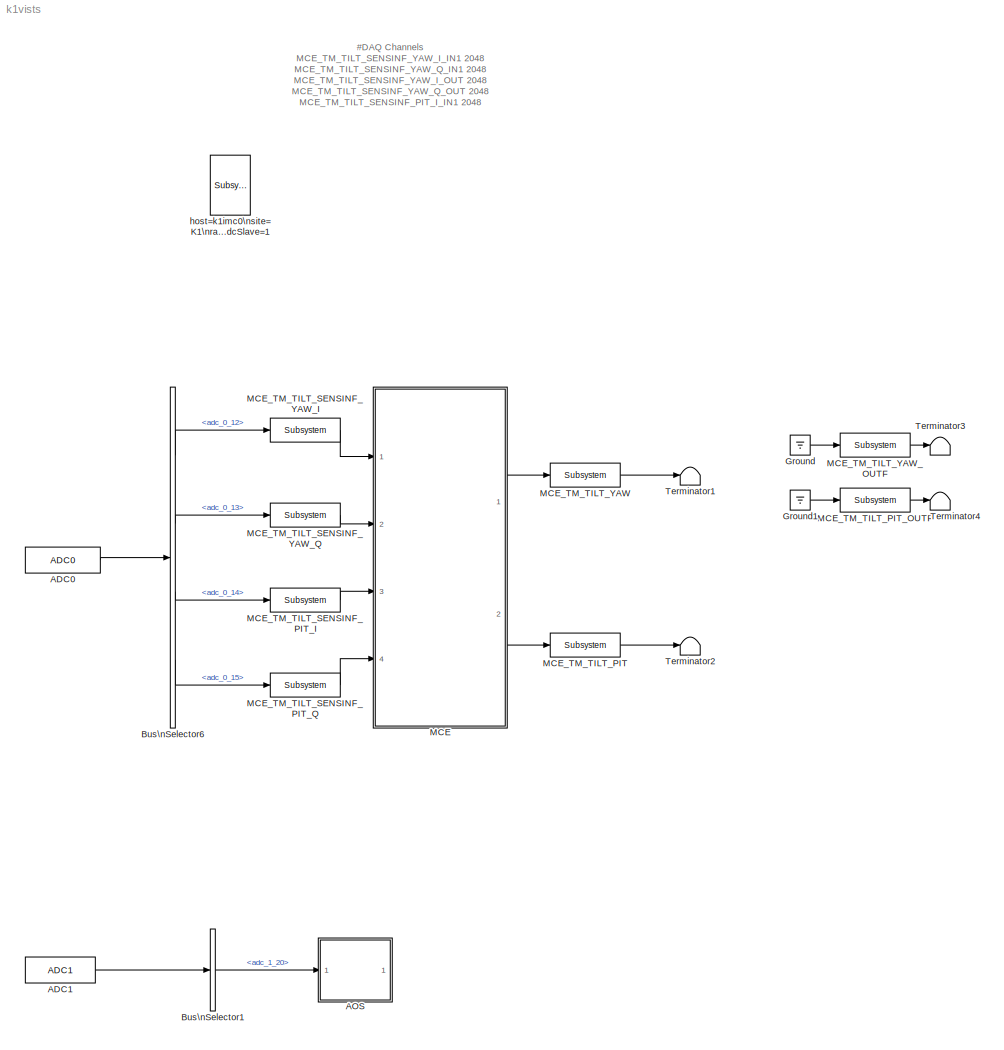
MODEL k1vists
KIND model
BLOCK [Reference] ADC0  REF=cdsAdcx0/ADC0
  AttributesFormatString = %<Description>\\n%<Tag>
  Description = type-GSC_16AI64SSA\ncard_num=0
  Ports = [0, 1]
  SID = 1211
  SourceBlock = cdsAdcx0/ADC0
  SourceType = SubSystem
  Tag = cdsAdc
BLOCK [Reference] ADC1  REF=cdsAdcx1/ADC1
  AttributesFormatString = %<Description>\\n%<Tag>
  Description = type-GSC_16AI64SSA\ncard_num=1
  Ports = [0, 1]
  SID = 2100
  SourceBlock = cdsAdcx1/ADC1
  SourceType = SubSystem
  Tag = cdsAdc
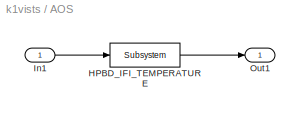
BLOCK [SubSystem] AOS
  Ports = [1, 1]
  RequestExecContextInheritance = off
  SID = 2102
  Tag = top_names
  Variant = off
BLOCK [Reference] AOS/HPBD_IFI_TEMPERATURE  REF=cdsFilt/Subsystem
  AttributesFormatString = %<Tag>
  Description = ADL=LOCKIN_FILTER.adl
  Ports = [1, 1]
  SID = 2101
  SourceBlock = cdsFilt/Subsystem
  SourceType = SubSystem
  Tag = cdsFilt
BLOCK [Inport] AOS/In1
  IconDisplay = Port number
  SID = 2103
BLOCK [Outport] AOS/Out1
  IconDisplay = Port number
  SID = 2104
BLOCK [BusSelector] Bus\nSelector1
  AttributesFormatString = %<Description>
  Description = ADC Selector
  OutputSignals = adc_1_20
  Ports = [1, 1]
  SID = 2105
BLOCK [BusSelector] Bus\nSelector6
  AttributesFormatString = %<Description>
  Description = ADC Selector
  OutputSignals = adc_0_12,adc_0_13,adc_0_14,adc_0_15
  Ports = [1, 4]
  SID = 1853
BLOCK [Ground] Ground
  SID = 2098
BLOCK [Ground] Ground1
  SID = 2099
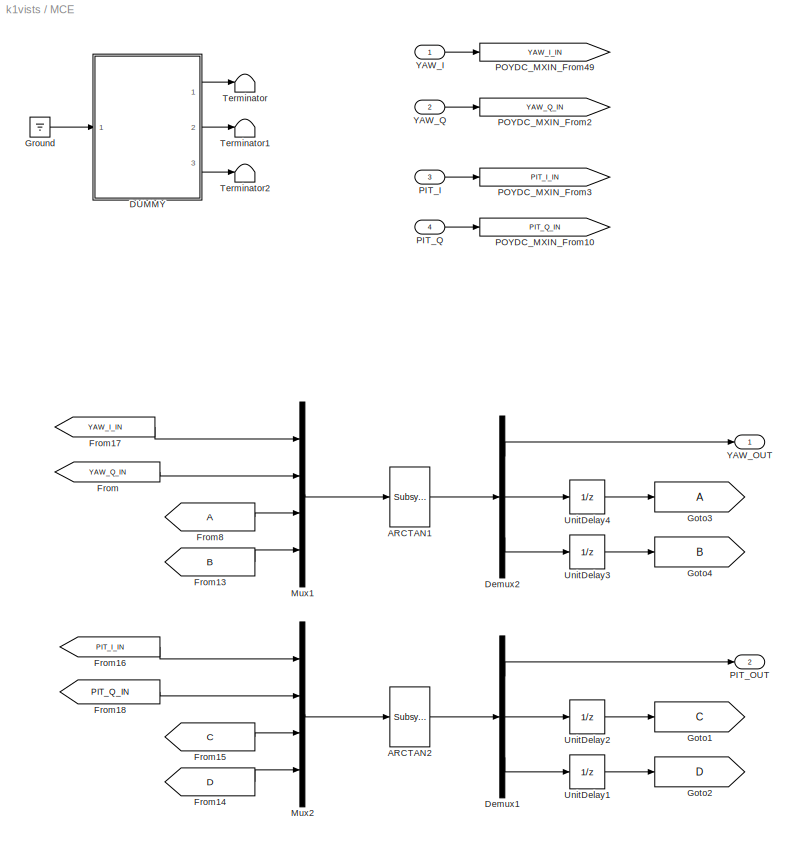
BLOCK [SubSystem] MCE
  Ports = [4, 2]
  RequestExecContextInheritance = off
  SID = 1860
  Variant = off
BLOCK [Reference] MCE/ARCTAN1  REF=cdsFunctionCall/Subsystem
  AttributesFormatString = %<Tag>\\n%<Description>
  Description = inline ARCTAN <path>
  Ports = [1, 1]
  SID = 1865
  SourceBlock = cdsFunctionCall/Subsystem
  SourceType = SubSystem
  Tag = cdsFunctionCall
BLOCK [Reference] MCE/ARCTAN2  REF=cdsFunctionCall/Subsystem
  AttributesFormatString = %<Tag>\\n%<Description>
  Description = inline ARCTAN <path>
  Ports = [1, 1]
  SID = 1866
  SourceBlock = cdsFunctionCall/Subsystem
  SourceType = SubSystem
  Tag = cdsFunctionCall
BLOCK [SubSystem] MCE/DUMMY
  AttributesFormatString = %<Tag>
  Description = ADL=LOCKIN.adl
  Ports = [1, 3]
  RequestExecContextInheritance = off
  SID = 2058
  Variant = off
BLOCK [Reference] MCE/DUMMY/DEMOD  REF=rtdemod/RTDEMOD
  Ports = [3, 2]
  SID = 2063
  SourceBlock = rtdemod/RTDEMOD
  SourceType = SubSystem
BLOCK [Ground] MCE/DUMMY/Ground2
  SID = 2064
BLOCK [Outport] MCE/DUMMY/I out
  IconDisplay = Port number
  Port = 2
  SID = 2069
BLOCK [Reference] MCE/DUMMY/LO  REF=cdsTP/Subsystem
  AttributesFormatString = %<Tag>
  Ports = [1]
  SID = 2065
  SourceBlock = cdsTP/Subsystem
  SourceType = SubSystem
  Tag = Test Point
BLOCK [Outport] MCE/DUMMY/LO out
  IconDisplay = Port number
  SID = 2068
BLOCK [Reference] MCE/DUMMY/LOMON  REF=cdsEpicsOut/Subsystem
  AttributesFormatString = %<Tag>
  Description = Purpose:                                          \nOutput a FE signal to an EPICS channel.           \n                                                  \nOperation:                                        \nTakes input value and passes it to EPICS record.  \n                                                  \nUsage:                                            \nName the part with the desired EPICS...<+14ch>
  Ports = [1, 1]
  SID = 2066
  SourceBlock = cdsEpicsOut/Subsystem
  SourceType = SubSystem
  Tag = cdsEpicsOutput
BLOCK [Reference] MCE/DUMMY/OSC  REF=cdsOsc/Subsystem
  AttributesFormatString = %<Tag>
  Description = Oscillator
  Ports = [1, 3]
  SID = 2067
  SourceBlock = cdsOsc/Subsystem
  SourceType = SubSystem
  Tag = cdsOsc
BLOCK [Outport] MCE/DUMMY/Q out
  IconDisplay = Port number
  Port = 3
  SID = 2070
BLOCK [Inport] MCE/DUMMY/SIG in
  IconDisplay = Port number
  SID = 2062
BLOCK [Demux] MCE/Demux1
  DisplayOption = bar
  Outputs = 3
  Ports = [1, 3]
  SID = 1870
BLOCK [Demux] MCE/Demux2
  DisplayOption = bar
  Outputs = 3
  Ports = [1, 3]
  SID = 1871
BLOCK [From] MCE/From
  GotoTag = YAW_Q_IN
  SID = 1872
BLOCK [From] MCE/From13
  GotoTag = B
  SID = 1877
BLOCK [From] MCE/From14
  GotoTag = D
  SID = 1878
BLOCK [From] MCE/From15
  GotoTag = C
  SID = 1879
BLOCK [From] MCE/From16
  GotoTag = PIT_I_IN
  SID = 1880
BLOCK [From] MCE/From17
  GotoTag = YAW_I_IN
  SID = 1881
BLOCK [From] MCE/From18
  GotoTag = PIT_Q_IN
  SID = 1882
BLOCK [From] MCE/From8
  SID = 1889
BLOCK [Goto] MCE/Goto1
  GotoTag = C
  SID = 1891
BLOCK [Goto] MCE/Goto2
  GotoTag = D
  SID = 1892
BLOCK [Goto] MCE/Goto3
  SID = 1893
BLOCK [Goto] MCE/Goto4
  GotoTag = B
  SID = 1894
BLOCK [Ground] MCE/Ground
  SID = 2091
BLOCK [Mux] MCE/Mux1
  DisplayOption = bar
  Ports = [4, 1]
  SID = 1939
BLOCK [Mux] MCE/Mux2
  DisplayOption = bar
  Ports = [4, 1]
  SID = 1940
BLOCK [Inport] MCE/PIT_I
  IconDisplay = Port number
  Port = 3
  SID = 1863
BLOCK [Outport] MCE/PIT_OUT
  IconDisplay = Port number
  Port = 2
  SID = 2020
BLOCK [Inport] MCE/PIT_Q
  IconDisplay = Port number
  Port = 4
  SID = 1864
BLOCK [Goto] MCE/POYDC_MXIN_From10
  GotoTag = PIT_Q_IN
  SID = 1942
BLOCK [Goto] MCE/POYDC_MXIN_From2
  GotoTag = YAW_Q_IN
  SID = 1943
BLOCK [Goto] MCE/POYDC_MXIN_From3
  GotoTag = PIT_I_IN
  SID = 1944
BLOCK [Goto] MCE/POYDC_MXIN_From49
  GotoTag = YAW_I_IN
  SID = 1946
BLOCK [Terminator] MCE/Terminator
  SID = 2088
BLOCK [Terminator] MCE/Terminator1
  SID = 2089
BLOCK [Terminator] MCE/Terminator2
  SID = 2090
BLOCK [UnitDelay] MCE/UnitDelay1
  SID = 2015
BLOCK [UnitDelay] MCE/UnitDelay2
  SID = 2016
BLOCK [UnitDelay] MCE/UnitDelay3
  SID = 2017
BLOCK [UnitDelay] MCE/UnitDelay4
  SID = 2018
BLOCK [Inport] MCE/YAW_I
  IconDisplay = Port number
  SID = 1861
BLOCK [Outport] MCE/YAW_OUT
  IconDisplay = Port number
  SID = 2019
BLOCK [Inport] MCE/YAW_Q
  IconDisplay = Port number
  Port = 2
  SID = 1862
BLOCK [Reference] MCE_TM_TILT_PIT  REF=cdsFilt/Subsystem
  AttributesFormatString = %<Tag>
  Description = ADL=LOCKIN_FILTER.adl
  Ports = [1, 1]
  SID = 2078
  SourceBlock = cdsFilt/Subsystem
  SourceType = SubSystem
  Tag = cdsFilt
BLOCK [Reference] MCE_TM_TILT_PIT_OUTF  REF=cdsFilt/Subsystem
  AttributesFormatString = %<Tag>
  Description = ADL=LOCKIN_FILTER.adl
  Ports = [1, 1]
  SID = 2095
  SourceBlock = cdsFilt/Subsystem
  SourceType = SubSystem
  Tag = cdsFilt
BLOCK [Reference] MCE_TM_TILT_SENSINF_PIT_I  REF=cdsFilt/Subsystem
  AttributesFormatString = %<Tag>
  Description = ADL=LOCKIN_FILTER.adl
  Ports = [1, 1]
  SID = 2075
  SourceBlock = cdsFilt/Subsystem
  SourceType = SubSystem
  Tag = cdsFilt
BLOCK [Reference] MCE_TM_TILT_SENSINF_PIT_Q  REF=cdsFilt/Subsystem
  AttributesFormatString = %<Tag>
  Description = ADL=LOCKIN_FILTER.adl
  Ports = [1, 1]
  SID = 2076
  SourceBlock = cdsFilt/Subsystem
  SourceType = SubSystem
  Tag = cdsFilt
BLOCK [Reference] MCE_TM_TILT_SENSINF_YAW_I  REF=cdsFilt/Subsystem
  AttributesFormatString = %<Tag>
  Description = ADL=LOCKIN_FILTER.adl
  Ports = [1, 1]
  SID = 2073
  SourceBlock = cdsFilt/Subsystem
  SourceType = SubSystem
  Tag = cdsFilt
BLOCK [Reference] MCE_TM_TILT_SENSINF_YAW_Q  REF=cdsFilt/Subsystem
  AttributesFormatString = %<Tag>
  Description = ADL=LOCKIN_FILTER.adl
  Ports = [1, 1]
  SID = 2074
  SourceBlock = cdsFilt/Subsystem
  SourceType = SubSystem
  Tag = cdsFilt
BLOCK [Reference] MCE_TM_TILT_YAW  REF=cdsFilt/Subsystem
  AttributesFormatString = %<Tag>
  Description = ADL=LOCKIN_FILTER.adl
  Ports = [1, 1]
  SID = 2077
  SourceBlock = cdsFilt/Subsystem
  SourceType = SubSystem
  Tag = cdsFilt
BLOCK [Reference] MCE_TM_TILT_YAW_OUTF  REF=cdsFilt/Subsystem
  AttributesFormatString = %<Tag>
  Description = ADL=LOCKIN_FILTER.adl
  Ports = [1, 1]
  SID = 2094
  SourceBlock = cdsFilt/Subsystem
  SourceType = SubSystem
  Tag = cdsFilt
BLOCK [Terminator] Terminator1
  SID = 1854
BLOCK [Terminator] Terminator2
  SID = 1855
BLOCK [Terminator] Terminator3
  SID = 2096
BLOCK [Terminator] Terminator4
  SID = 2097
BLOCK [Reference] host=k1imc0\nsite=K1\nrate=16K\ndcuid=41\nspecific_cpu=5\nadcSlave=1  REF=cdsParameters/Subsystem
  AttributesFormatString = %<Tag>
  Description = Purpose:                                                                                                                                                                                                                                \nProvide system parameters to the FE code generator to properly configure the generated EPICS names, rep rate of the FE controller, and the Data Acquisition node ID fo...<+2934ch>
  Ports = []
  SID = 15
  SourceBlock = cdsParameters/Subsystem
  SourceType = SubSystem
  Tag = cdsParameters
ANNOTATION (root): #DAQ Channels\nMCE_TM_TILT_SENSINF_YAW_I_IN1 2048\nMCE_TM_TILT_SENSINF_YAW_Q_IN1 2048\nMCE_TM_TILT_SENSINF_YAW_I_OUT 2048\nMCE_TM_TILT_SENSINF_YAW_Q_OUT 2048\nMCE_TM_TILT_SENSINF_PIT_I_IN1 2048\nMCE_TM_TILT_SENSINF_PIT_Q_IN1 2048\nMCE_TM_TILT_SENSINF_PIT_I_OUT 2048\nMCE_TM_TILT_SENSINF_PIT_Q_OUT 2048\nMCE_TM_TILT_YAW_IN1 2048\nMCE_TM_TILT_YAW_OUT 2048\nMCE_TM_TILT_PIT_IN1 2048\nMCE_TM_TILT_PIT_OUT...<+102ch>
ANNOTATION MCE/DUMMY: $HeadURL: https://redoubt.ligo-wa.caltech.edu/svn/cds_user_apps/trunk/cds/common/models/lockin.mdl $
ANNOTATION MCE/DUMMY: $Id: lockin.mdl 6334 2013-11-14 22:50:26Z <email> $
LINE ADC0:1 -> Bus\nSelector6:1
LINE ADC1:1 -> Bus\nSelector1:1
LINE AOS/HPBD_IFI_TEMPERATURE:1 -> AOS/Out1:1
LINE AOS/In1:1 -> AOS/HPBD_IFI_TEMPERATURE:1
LINE Bus\nSelector1:1 -> AOS:1
LINE Bus\nSelector6:1 -> MCE_TM_TILT_SENSINF_YAW_I:1
LINE Bus\nSelector6:2 -> MCE_TM_TILT_SENSINF_YAW_Q:1
LINE Bus\nSelector6:3 -> MCE_TM_TILT_SENSINF_PIT_I:1
LINE Bus\nSelector6:4 -> MCE_TM_TILT_SENSINF_PIT_Q:1
LINE Ground1:1 -> MCE_TM_TILT_PIT_OUTF:1
LINE Ground:1 -> MCE_TM_TILT_YAW_OUTF:1
LINE MCE/ARCTAN1:1 -> MCE/Demux2:1
LINE MCE/ARCTAN2:1 -> MCE/Demux1:1
LINE MCE/DUMMY/DEMOD:1 -> MCE/DUMMY/I out:1
LINE MCE/DUMMY/DEMOD:2 -> MCE/DUMMY/Q out:1
LINE MCE/DUMMY/Ground2:1 -> MCE/DUMMY/OSC:1
LINE MCE/DUMMY/LOMON:1 -> MCE/DUMMY/LO out:1
NET MCE/DUMMY/OSC:1 -> MCE/DUMMY/LO:1, MCE/DUMMY/LOMON:1
LINE MCE/DUMMY/OSC:2 -> MCE/DUMMY/DEMOD:2
LINE MCE/DUMMY/OSC:3 -> MCE/DUMMY/DEMOD:3
LINE MCE/DUMMY/SIG in:1 -> MCE/DUMMY/DEMOD:1
LINE MCE/DUMMY:1 -> MCE/Terminator:1
LINE MCE/DUMMY:2 -> MCE/Terminator1:1
LINE MCE/DUMMY:3 -> MCE/Terminator2:1
LINE MCE/Demux1:1 -> MCE/PIT_OUT:1
LINE MCE/Demux1:2 -> MCE/UnitDelay2:1
LINE MCE/Demux1:3 -> MCE/UnitDelay1:1
LINE MCE/Demux2:1 -> MCE/YAW_OUT:1
LINE MCE/Demux2:2 -> MCE/UnitDelay4:1
LINE MCE/Demux2:3 -> MCE/UnitDelay3:1
LINE MCE/From13:1 -> MCE/Mux1:4
LINE MCE/From14:1 -> MCE/Mux2:4
LINE MCE/From15:1 -> MCE/Mux2:3
LINE MCE/From16:1 -> MCE/Mux2:1
LINE MCE/From17:1 -> MCE/Mux1:1
LINE MCE/From18:1 -> MCE/Mux2:2
LINE MCE/From8:1 -> MCE/Mux1:3
LINE MCE/From:1 -> MCE/Mux1:2
LINE MCE/Ground:1 -> MCE/DUMMY:1
LINE MCE/Mux1:1 -> MCE/ARCTAN1:1
LINE MCE/Mux2:1 -> MCE/ARCTAN2:1
LINE MCE/PIT_I:1 -> MCE/POYDC_MXIN_From3:1
LINE MCE/PIT_Q:1 -> MCE/POYDC_MXIN_From10:1
LINE MCE/UnitDelay1:1 -> MCE/Goto2:1
LINE MCE/UnitDelay2:1 -> MCE/Goto1:1
LINE MCE/UnitDelay3:1 -> MCE/Goto4:1
LINE MCE/UnitDelay4:1 -> MCE/Goto3:1
LINE MCE/YAW_I:1 -> MCE/POYDC_MXIN_From49:1
LINE MCE/YAW_Q:1 -> MCE/POYDC_MXIN_From2:1
LINE MCE:1 -> MCE_TM_TILT_YAW:1
LINE MCE:2 -> MCE_TM_TILT_PIT:1
LINE MCE_TM_TILT_PIT:1 -> Terminator2:1
LINE MCE_TM_TILT_PIT_OUTF:1 -> Terminator4:1
LINE MCE_TM_TILT_SENSINF_PIT_I:1 -> MCE:3
LINE MCE_TM_TILT_SENSINF_PIT_Q:1 -> MCE:4
LINE MCE_TM_TILT_SENSINF_YAW_I:1 -> MCE:1
LINE MCE_TM_TILT_SENSINF_YAW_Q:1 -> MCE:2
LINE MCE_TM_TILT_YAW:1 -> Terminator1:1
LINE MCE_TM_TILT_YAW_OUTF:1 -> Terminator3:1
note: NET lines group one-source signal fan-out (src -> all destinations, sorted); 1:1 wires keep LINE
note: 2 file-system paths scrubbed to <path> (not preserved elsewhere — flat text is the only slx artifact)
